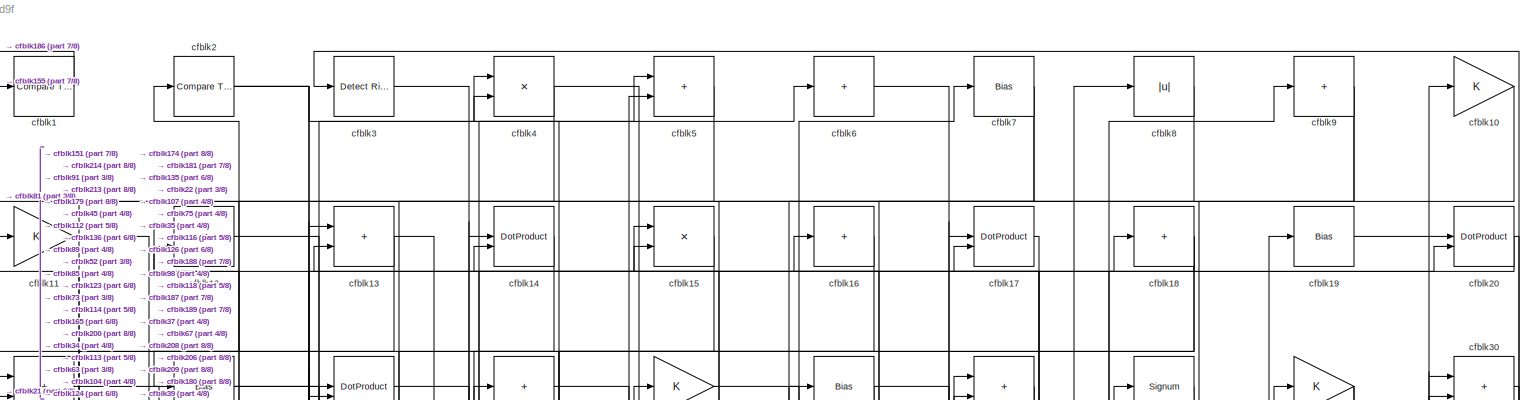
[diagram: root canvas - part 1/8, full width, top band]
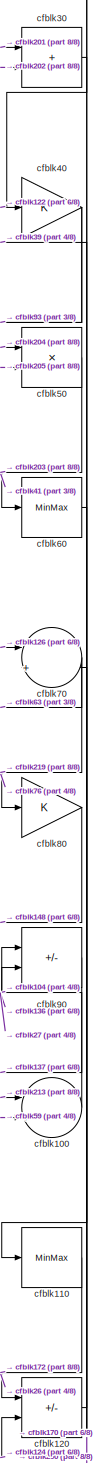
[diagram: root canvas - part 2/8, top right region]
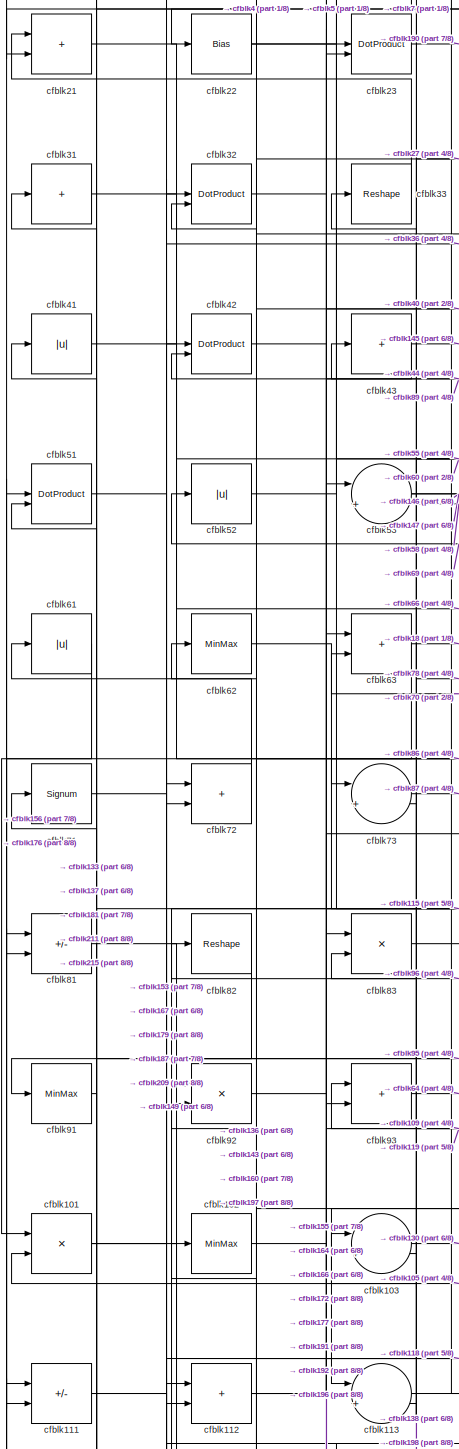
[diagram: root canvas - part 3/8, top left region]
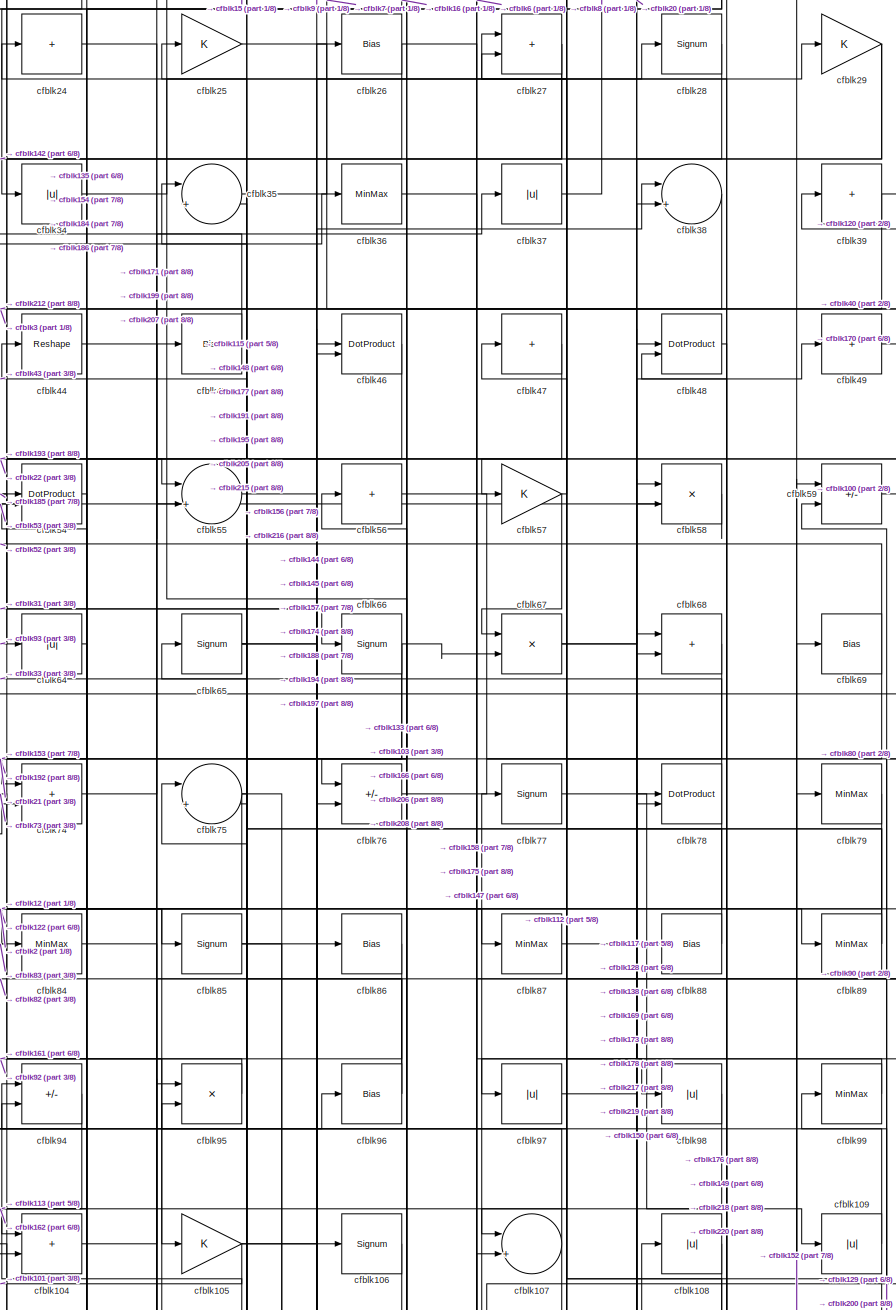
[diagram: root canvas - part 4/8, top center region]
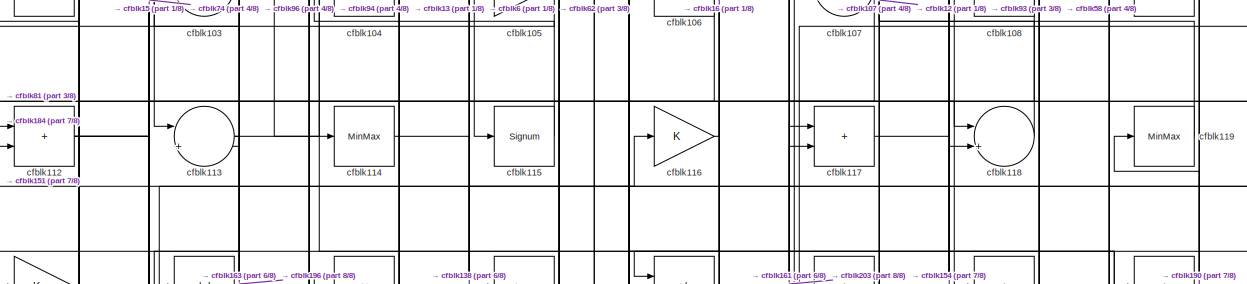
[diagram: root canvas - part 5/8, full width, middle band]
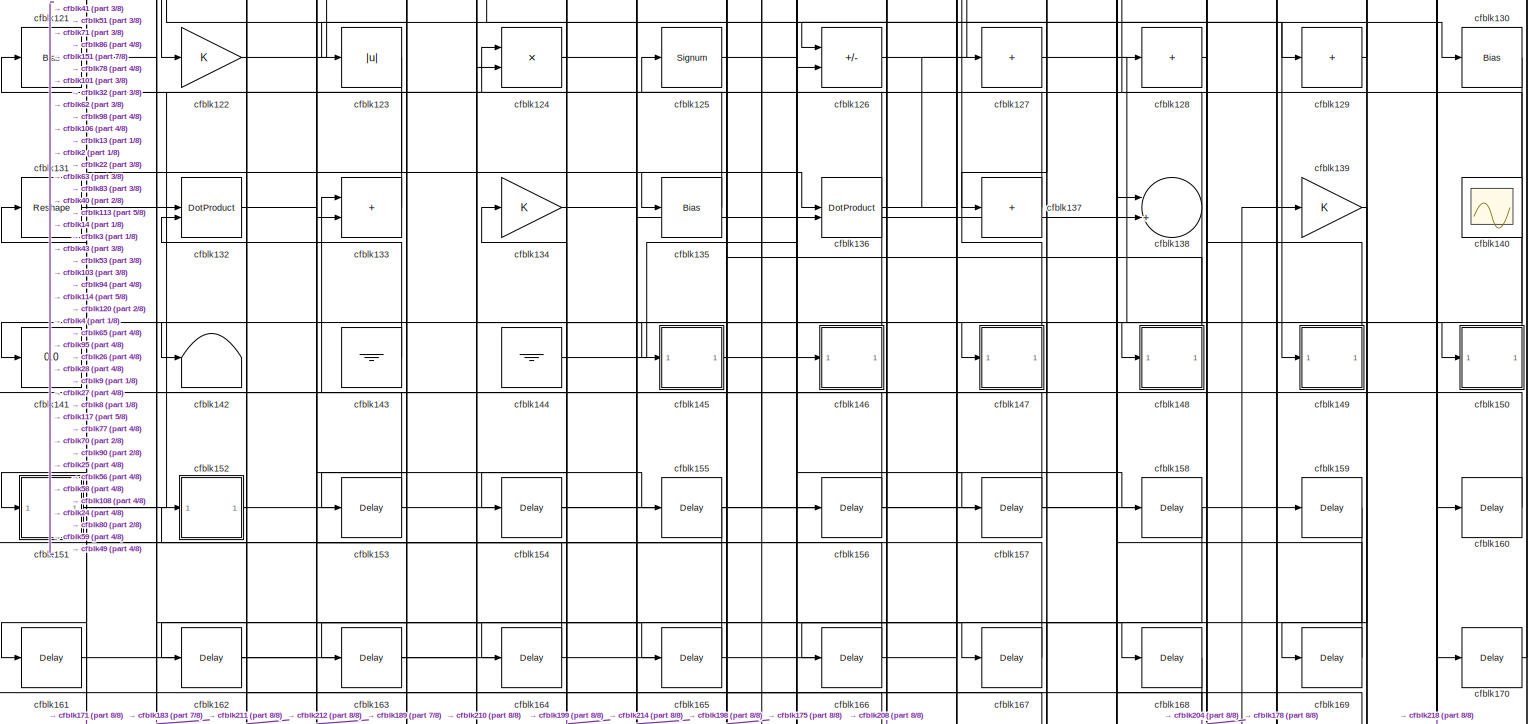
[diagram: root canvas - part 6/8, full width, middle band]
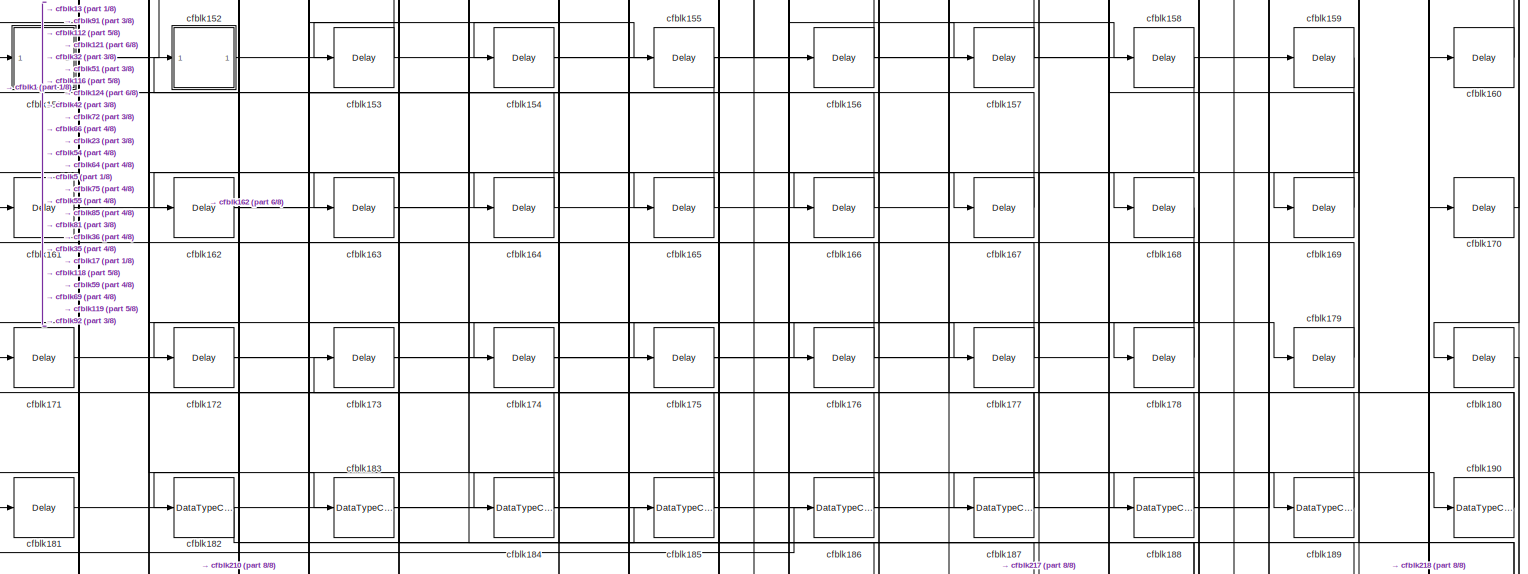
[diagram: root canvas - part 7/8, full width, bottom band]
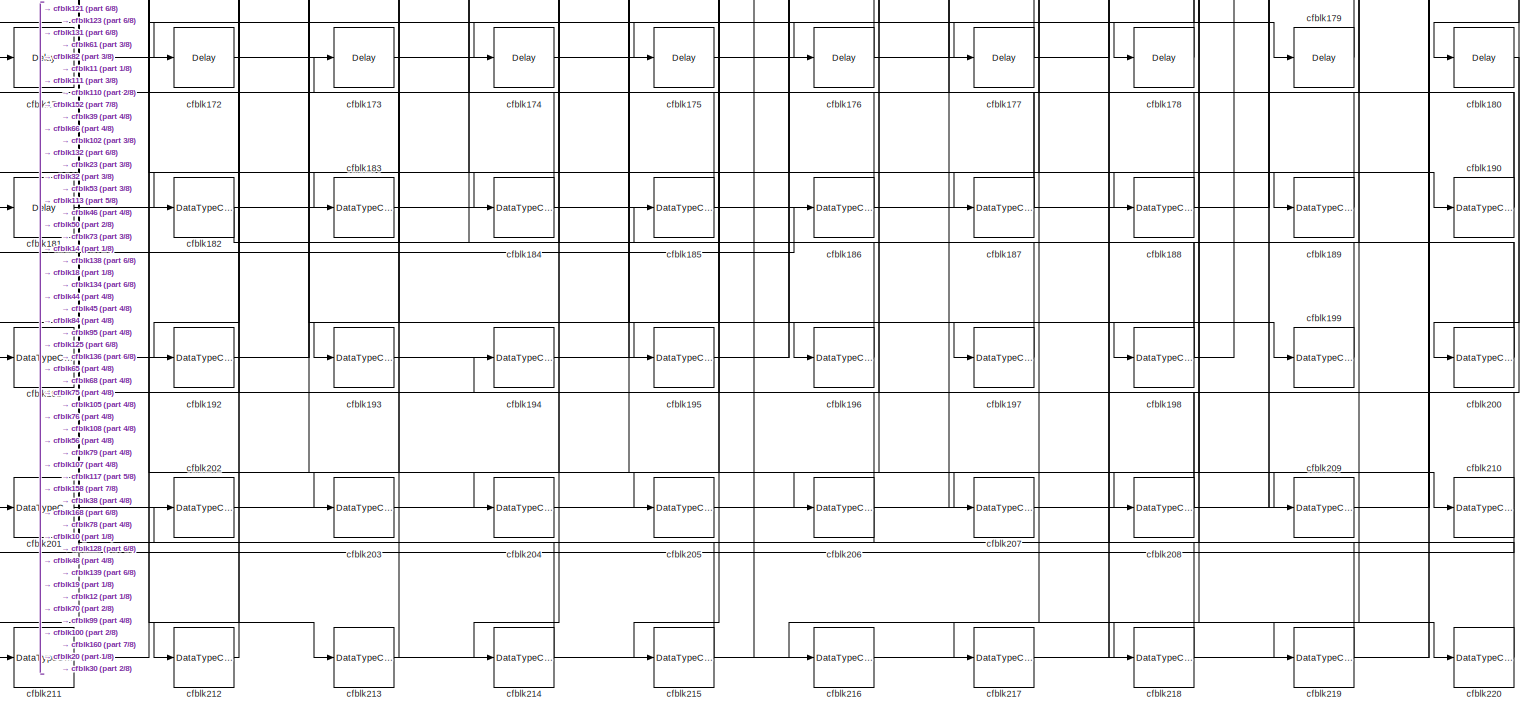
[diagram: root canvas - part 8/8, full width, bottom band]
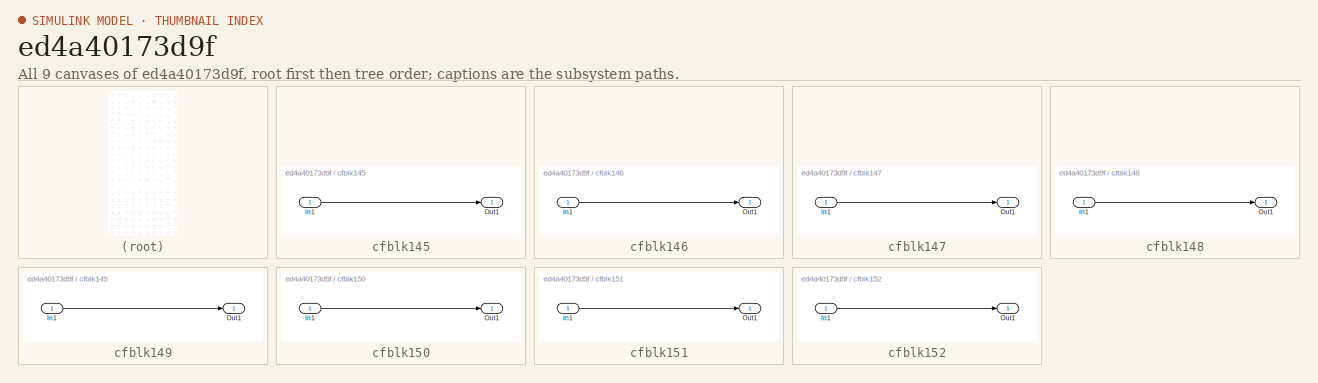
[diagram: thumbnail index - all 9 canvases of the model, root first then tree order]
MODEL slx_ed4a40173d9f
KIND model
CONFIG AbsTol = auto
CONFIG EnableMultiTasking = off
CONFIG FixedStep = auto
CONFIG MaxStep = auto
CONFIG MinStep = auto
CONFIG RelTol = 1e-3
CONFIG SampleTimeConstraint = Unconstrained
CONFIG SolverName = VariableStepAuto
CONFIG StartTime = 0.0
CONFIG StopTime = 10.0
BLOCK [Reference] cfblk1  REF=hdlsllib/Logic and Bit
Operations/Compare
To Zero
  SourceBlock = hdlsllib/Logic and Bit\nOperations/Compare\nTo Zero
  SourceType = Compare To Zero
BLOCK [Gain] cfblk10
BLOCK [Sum] cfblk100
  Inputs = |++
BLOCK [Product] cfblk101
  Inputs = */
  RndMeth = Zero
  SaturateOnIntegerOverflow = on
BLOCK [MinMax] cfblk102
BLOCK [Sum] cfblk103
  Inputs = |++
BLOCK [Sum] cfblk104
  IconShape = rectangular
BLOCK [Gain] cfblk105
BLOCK [Signum] cfblk106
BLOCK [Sum] cfblk107
  Inputs = |++
BLOCK [Abs] cfblk108
  SaturateOnIntegerOverflow = off
BLOCK [Abs] cfblk109
  SaturateOnIntegerOverflow = off
BLOCK [Gain] cfblk11
BLOCK [MinMax] cfblk110
BLOCK [Sum] cfblk111
  IconShape = rectangular
  Inputs = +-
BLOCK [Sum] cfblk112
  IconShape = rectangular
BLOCK [Sum] cfblk113
  Inputs = |++
BLOCK [MinMax] cfblk114
BLOCK [Signum] cfblk115
BLOCK [Gain] cfblk116
BLOCK [Sum] cfblk117
  IconShape = rectangular
BLOCK [Sum] cfblk118
  Inputs = |++
BLOCK [MinMax] cfblk119
BLOCK [Product] cfblk12
  Inputs = */
  RndMeth = Zero
  SaturateOnIntegerOverflow = on
BLOCK [Sum] cfblk120
  IconShape = rectangular
  Inputs = +-
BLOCK [Bias] cfblk121
  Bias = 0.0
  SaturateOnIntegerOverflow = off
BLOCK [Gain] cfblk122
BLOCK [Abs] cfblk123
  SaturateOnIntegerOverflow = off
BLOCK [Product] cfblk124
  Inputs = */
  RndMeth = Zero
  SaturateOnIntegerOverflow = on
BLOCK [Signum] cfblk125
BLOCK [Sum] cfblk126
  IconShape = rectangular
  Inputs = +-
BLOCK [Sum] cfblk127
  IconShape = rectangular
  Inputs = +
BLOCK [Sum] cfblk128
  IconShape = rectangular
  Inputs = +
BLOCK [Sum] cfblk129
  IconShape = rectangular
  Inputs = +
BLOCK [Sum] cfblk13
  IconShape = rectangular
BLOCK [Bias] cfblk130
  Bias = 0.0
  SaturateOnIntegerOverflow = off
BLOCK [Reshape] cfblk131
BLOCK [DotProduct] cfblk132
  OutDataTypeStr = Inherit: Inherit via internal rule
BLOCK [Sum] cfblk133
  IconShape = rectangular
BLOCK [Gain] cfblk134
BLOCK [Bias] cfblk135
  Bias = 0.0
  SaturateOnIntegerOverflow = off
BLOCK [DotProduct] cfblk136
  OutDataTypeStr = Inherit: Inherit via internal rule
BLOCK [Sum] cfblk137
  IconShape = rectangular
  Inputs = +
BLOCK [Sum] cfblk138
  Inputs = |++
BLOCK [Gain] cfblk139
BLOCK [DotProduct] cfblk14
  OutDataTypeStr = Inherit: Inherit via internal rule
BLOCK [Scope] cfblk140
  Floating = on
  NumInputPorts = 1
  ScopeSpecificationString = Simulink.scopes.TimeScopeBlockCfg('CurrentConfiguration', extmgr.ConfigurationSet(extmgr.Configuration('Core','General UI',true,'FigureColor',[0.156862745098039 0.156862745098039 0.156862745098039]),extmgr.Configuration('Core','Source UI',true),extmgr.Configuration('Sources','WiredSimulink',true,'DataLoggingVariableName','ScopeData1','DataLoggingSaveFormat','StructureWithTime','DataLoggingLimitDat...<+2713ch>
BLOCK [Display] cfblk141
  Decimation = 1
BLOCK [Terminator] cfblk142
BLOCK [Ground] cfblk143
BLOCK [Ground] cfblk144
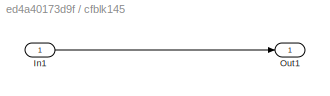
BLOCK [SubSystem] cfblk145
  LibrarySourceBlock = hdlsllib/Ports &\nSubsystems/Subsystem
BLOCK [Inport] cfblk145/In1
BLOCK [Outport] cfblk145/Out1
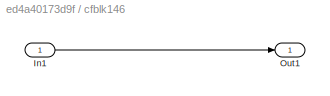
BLOCK [SubSystem] cfblk146
  LibrarySourceBlock = hdlsllib/Ports &\nSubsystems/Subsystem
BLOCK [Inport] cfblk146/In1
BLOCK [Outport] cfblk146/Out1
BLOCK [SubSystem] cfblk147
  LibrarySourceBlock = hdlsllib/Ports &\nSubsystems/Subsystem
BLOCK [Inport] cfblk147/In1
BLOCK [Outport] cfblk147/Out1
BLOCK [SubSystem] cfblk148
  LibrarySourceBlock = hdlsllib/Ports &\nSubsystems/Subsystem
BLOCK [Inport] cfblk148/In1
BLOCK [Outport] cfblk148/Out1
BLOCK [SubSystem] cfblk149
  LibrarySourceBlock = hdlsllib/Ports &\nSubsystems/Subsystem
BLOCK [Inport] cfblk149/In1
BLOCK [Outport] cfblk149/Out1
BLOCK [Product] cfblk15
  Inputs = */
  RndMeth = Zero
  SaturateOnIntegerOverflow = on
BLOCK [SubSystem] cfblk150
  LibrarySourceBlock = hdlsllib/Ports &\nSubsystems/Subsystem
BLOCK [Inport] cfblk150/In1
BLOCK [Outport] cfblk150/Out1
BLOCK [SubSystem] cfblk151
  LibrarySourceBlock = hdlsllib/Ports &\nSubsystems/Subsystem
BLOCK [Inport] cfblk151/In1
BLOCK [Outport] cfblk151/Out1
BLOCK [SubSystem] cfblk152
  LibrarySourceBlock = hdlsllib/Ports &\nSubsystems/Subsystem
BLOCK [Inport] cfblk152/In1
BLOCK [Outport] cfblk152/Out1
BLOCK [Delay] cfblk153
  InputPortMap = u0
  SampleTime = 1
BLOCK [Delay] cfblk154
  InputPortMap = u0
  SampleTime = 1
BLOCK [Delay] cfblk155
  InputPortMap = u0
  SampleTime = 1
BLOCK [Delay] cfblk156
  InputPortMap = u0
  SampleTime = 1
BLOCK [Delay] cfblk157
  InputPortMap = u0
  SampleTime = 1
BLOCK [Delay] cfblk158
  InputPortMap = u0
  SampleTime = 1
BLOCK [Delay] cfblk159
  InputPortMap = u0
  SampleTime = 1
BLOCK [Sum] cfblk16
  IconShape = rectangular
  Inputs = +
BLOCK [Delay] cfblk160
  InputPortMap = u0
  SampleTime = 1
BLOCK [Delay] cfblk161
  InputPortMap = u0
  SampleTime = 1
BLOCK [Delay] cfblk162
  InputPortMap = u0
  SampleTime = 1
BLOCK [Delay] cfblk163
  InputPortMap = u0
  SampleTime = 1
BLOCK [Delay] cfblk164
  InputPortMap = u0
  SampleTime = 1
BLOCK [Delay] cfblk165
  InputPortMap = u0
  SampleTime = 1
BLOCK [Delay] cfblk166
  InputPortMap = u0
  SampleTime = 1
BLOCK [Delay] cfblk167
  InputPortMap = u0
  SampleTime = 1
BLOCK [Delay] cfblk168
  InputPortMap = u0
  SampleTime = 1
BLOCK [Delay] cfblk169
  InputPortMap = u0
  SampleTime = 1
BLOCK [DotProduct] cfblk17
  OutDataTypeStr = Inherit: Inherit via internal rule
BLOCK [Delay] cfblk170
  InputPortMap = u0
  SampleTime = 1
BLOCK [Delay] cfblk171
  InputPortMap = u0
  SampleTime = 1
BLOCK [Delay] cfblk172
  InputPortMap = u0
  SampleTime = 1
BLOCK [Delay] cfblk173
  InputPortMap = u0
  SampleTime = 1
BLOCK [Delay] cfblk174
  InputPortMap = u0
  SampleTime = 1
BLOCK [Delay] cfblk175
  InputPortMap = u0
  SampleTime = 1
BLOCK [Delay] cfblk176
  InputPortMap = u0
  SampleTime = 1
BLOCK [Delay] cfblk177
  InputPortMap = u0
  SampleTime = 1
BLOCK [Delay] cfblk178
  InputPortMap = u0
  SampleTime = 1
BLOCK [Delay] cfblk179
  InputPortMap = u0
  SampleTime = 1
BLOCK [Sum] cfblk18
  IconShape = rectangular
  Inputs = +
BLOCK [Delay] cfblk180
  InputPortMap = u0
  SampleTime = 1
BLOCK [Delay] cfblk181
  InputPortMap = u0
  SampleTime = 1
BLOCK [DataTypeConversion] cfblk182
  OutDataTypeStr = uint8
  RndMeth = Floor
  SaturateOnIntegerOverflow = off
BLOCK [DataTypeConversion] cfblk183
  OutDataTypeStr = uint8
  RndMeth = Floor
  SaturateOnIntegerOverflow = off
BLOCK [DataTypeConversion] cfblk184
  RndMeth = Floor
  SaturateOnIntegerOverflow = off
BLOCK [DataTypeConversion] cfblk185
  OutDataTypeStr = uint8
  RndMeth = Floor
  SaturateOnIntegerOverflow = off
BLOCK [DataTypeConversion] cfblk186
  OutDataTypeStr = uint8
  RndMeth = Floor
  SaturateOnIntegerOverflow = off
BLOCK [DataTypeConversion] cfblk187
  RndMeth = Floor
  SaturateOnIntegerOverflow = off
BLOCK [DataTypeConversion] cfblk188
  OutDataTypeStr = uint8
  RndMeth = Floor
  SaturateOnIntegerOverflow = off
BLOCK [DataTypeConversion] cfblk189
  OutDataTypeStr = uint8
  RndMeth = Floor
  SaturateOnIntegerOverflow = off
BLOCK [Bias] cfblk19
  Bias = 0.0
  SaturateOnIntegerOverflow = off
BLOCK [DataTypeConversion] cfblk190
  RndMeth = Floor
  SaturateOnIntegerOverflow = off
BLOCK [DataTypeConversion] cfblk191
  OutDataTypeStr = uint8
  RndMeth = Floor
  SaturateOnIntegerOverflow = off
BLOCK [DataTypeConversion] cfblk192
  OutDataTypeStr = uint8
  RndMeth = Floor
  SaturateOnIntegerOverflow = off
BLOCK [DataTypeConversion] cfblk193
  OutDataTypeStr = uint8
  RndMeth = Floor
  SaturateOnIntegerOverflow = off
BLOCK [DataTypeConversion] cfblk194
  OutDataTypeStr = uint8
  RndMeth = Floor
  SaturateOnIntegerOverflow = off
BLOCK [DataTypeConversion] cfblk195
  OutDataTypeStr = uint8
  RndMeth = Floor
  SaturateOnIntegerOverflow = off
BLOCK [DataTypeConversion] cfblk196
  OutDataTypeStr = uint8
  RndMeth = Floor
  SaturateOnIntegerOverflow = off
BLOCK [DataTypeConversion] cfblk197
  OutDataTypeStr = uint8
  RndMeth = Floor
  SaturateOnIntegerOverflow = off
BLOCK [DataTypeConversion] cfblk198
  RndMeth = Floor
  SaturateOnIntegerOverflow = off
BLOCK [DataTypeConversion] cfblk199
  OutDataTypeStr = uint8
  RndMeth = Floor
  SaturateOnIntegerOverflow = off
BLOCK [Reference] cfblk2  REF=hdlsllib/Logic and Bit
Operations/Compare
To Constant
  SourceBlock = hdlsllib/Logic and Bit\nOperations/Compare\nTo Constant
  SourceType = Compare To Constant
BLOCK [DotProduct] cfblk20
  OutDataTypeStr = Inherit: Inherit via internal rule
BLOCK [DataTypeConversion] cfblk200
  RndMeth = Floor
  SaturateOnIntegerOverflow = off
BLOCK [DataTypeConversion] cfblk201
  OutDataTypeStr = uint8
  RndMeth = Floor
  SaturateOnIntegerOverflow = off
BLOCK [DataTypeConversion] cfblk202
  OutDataTypeStr = uint8
  RndMeth = Floor
  SaturateOnIntegerOverflow = off
BLOCK [DataTypeConversion] cfblk203
  OutDataTypeStr = uint8
  RndMeth = Floor
  SaturateOnIntegerOverflow = off
BLOCK [DataTypeConversion] cfblk204
  OutDataTypeStr = uint8
  RndMeth = Floor
  SaturateOnIntegerOverflow = off
BLOCK [DataTypeConversion] cfblk205
  OutDataTypeStr = uint8
  RndMeth = Floor
  SaturateOnIntegerOverflow = off
BLOCK [DataTypeConversion] cfblk206
  RndMeth = Floor
  SaturateOnIntegerOverflow = off
BLOCK [DataTypeConversion] cfblk207
  OutDataTypeStr = uint8
  RndMeth = Floor
  SaturateOnIntegerOverflow = off
BLOCK [DataTypeConversion] cfblk208
  RndMeth = Floor
  SaturateOnIntegerOverflow = off
BLOCK [DataTypeConversion] cfblk209
  OutDataTypeStr = uint8
  RndMeth = Floor
  SaturateOnIntegerOverflow = off
BLOCK [Sum] cfblk21
  IconShape = rectangular
BLOCK [DataTypeConversion] cfblk210
  RndMeth = Floor
  SaturateOnIntegerOverflow = off
BLOCK [DataTypeConversion] cfblk211
  OutDataTypeStr = uint8
  RndMeth = Floor
  SaturateOnIntegerOverflow = off
BLOCK [DataTypeConversion] cfblk212
  OutDataTypeStr = uint8
  RndMeth = Floor
  SaturateOnIntegerOverflow = off
BLOCK [DataTypeConversion] cfblk213
  RndMeth = Floor
  SaturateOnIntegerOverflow = off
BLOCK [DataTypeConversion] cfblk214
  OutDataTypeStr = uint8
  RndMeth = Floor
  SaturateOnIntegerOverflow = off
BLOCK [DataTypeConversion] cfblk215
  RndMeth = Floor
  SaturateOnIntegerOverflow = off
BLOCK [DataTypeConversion] cfblk216
  OutDataTypeStr = uint8
  RndMeth = Floor
  SaturateOnIntegerOverflow = off
BLOCK [DataTypeConversion] cfblk217
  OutDataTypeStr = uint8
  RndMeth = Floor
  SaturateOnIntegerOverflow = off
BLOCK [DataTypeConversion] cfblk218
  RndMeth = Floor
  SaturateOnIntegerOverflow = off
BLOCK [DataTypeConversion] cfblk219
  OutDataTypeStr = uint8
  RndMeth = Floor
  SaturateOnIntegerOverflow = off
BLOCK [Bias] cfblk22
  Bias = 0.0
  SaturateOnIntegerOverflow = off
BLOCK [DataTypeConversion] cfblk220
  OutDataTypeStr = uint8
  RndMeth = Floor
  SaturateOnIntegerOverflow = off
BLOCK [DotProduct] cfblk23
  OutDataTypeStr = Inherit: Inherit via internal rule
BLOCK [Sum] cfblk24
  IconShape = rectangular
  Inputs = +
BLOCK [Gain] cfblk25
BLOCK [Bias] cfblk26
  Bias = 0.0
  SaturateOnIntegerOverflow = off
BLOCK [Sum] cfblk27
  IconShape = rectangular
BLOCK [Signum] cfblk28
BLOCK [Gain] cfblk29
BLOCK [Reference] cfblk3  REF=hdlsllib/Logic and Bit
Operations/Detect Rise
Positive
  SourceBlock = hdlsllib/Logic and Bit\nOperations/Detect Rise\nPositive
  SourceType = Detect Rise Positive
BLOCK [Sum] cfblk30
  IconShape = rectangular
BLOCK [Sum] cfblk31
  IconShape = rectangular
  Inputs = +
BLOCK [DotProduct] cfblk32
  OutDataTypeStr = Inherit: Inherit via internal rule
BLOCK [Reshape] cfblk33
BLOCK [Abs] cfblk34
  SaturateOnIntegerOverflow = off
BLOCK [Sum] cfblk35
  Inputs = |++
BLOCK [MinMax] cfblk36
BLOCK [Abs] cfblk37
  SaturateOnIntegerOverflow = off
BLOCK [Sum] cfblk38
  Inputs = |++
BLOCK [Sum] cfblk39
  IconShape = rectangular
  Inputs = +
BLOCK [Product] cfblk4
  Inputs = */
  RndMeth = Zero
  SaturateOnIntegerOverflow = on
BLOCK [Gain] cfblk40
BLOCK [Abs] cfblk41
  SaturateOnIntegerOverflow = off
BLOCK [DotProduct] cfblk42
  OutDataTypeStr = Inherit: Inherit via internal rule
BLOCK [Sum] cfblk43
  IconShape = rectangular
  Inputs = +
BLOCK [Reshape] cfblk44
BLOCK [Bias] cfblk45
  Bias = 0.0
  SaturateOnIntegerOverflow = off
BLOCK [DotProduct] cfblk46
  OutDataTypeStr = Inherit: Inherit via internal rule
BLOCK [Sum] cfblk47
  IconShape = rectangular
  Inputs = +
BLOCK [DotProduct] cfblk48
  OutDataTypeStr = Inherit: Inherit via internal rule
BLOCK [Sum] cfblk49
  IconShape = rectangular
  Inputs = +
BLOCK [Sum] cfblk5
  IconShape = rectangular
BLOCK [Product] cfblk50
  Inputs = */
  RndMeth = Zero
  SaturateOnIntegerOverflow = on
BLOCK [DotProduct] cfblk51
  OutDataTypeStr = Inherit: Inherit via internal rule
BLOCK [Abs] cfblk52
  SaturateOnIntegerOverflow = off
BLOCK [Sum] cfblk53
  Inputs = |++
BLOCK [DotProduct] cfblk54
  OutDataTypeStr = Inherit: Inherit via internal rule
BLOCK [Sum] cfblk55
  Inputs = |++
BLOCK [Sum] cfblk56
  IconShape = rectangular
  Inputs = +
BLOCK [Gain] cfblk57
BLOCK [Product] cfblk58
  Inputs = */
  RndMeth = Zero
  SaturateOnIntegerOverflow = on
BLOCK [Sum] cfblk59
  IconShape = rectangular
  Inputs = +-
BLOCK [Sum] cfblk6
  IconShape = rectangular
  Inputs = +
BLOCK [MinMax] cfblk60
BLOCK [Abs] cfblk61
  SaturateOnIntegerOverflow = off
BLOCK [MinMax] cfblk62
BLOCK [Sum] cfblk63
  IconShape = rectangular
BLOCK [Abs] cfblk64
  SaturateOnIntegerOverflow = off
BLOCK [Signum] cfblk65
BLOCK [Signum] cfblk66
BLOCK [Product] cfblk67
  Inputs = */
  RndMeth = Zero
  SaturateOnIntegerOverflow = on
BLOCK [Sum] cfblk68
  IconShape = rectangular
BLOCK [Bias] cfblk69
  Bias = 0.0
  SaturateOnIntegerOverflow = off
BLOCK [Bias] cfblk7
  Bias = 0.0
  SaturateOnIntegerOverflow = off
BLOCK [Sum] cfblk70
  Inputs = |++
BLOCK [Signum] cfblk71
BLOCK [Sum] cfblk72
  IconShape = rectangular
BLOCK [Sum] cfblk73
  Inputs = |++
BLOCK [Sum] cfblk74
  IconShape = rectangular
BLOCK [Sum] cfblk75
  Inputs = |++
BLOCK [Sum] cfblk76
  IconShape = rectangular
  Inputs = +-
BLOCK [Signum] cfblk77
BLOCK [DotProduct] cfblk78
  OutDataTypeStr = Inherit: Inherit via internal rule
BLOCK [MinMax] cfblk79
BLOCK [Abs] cfblk8
  SaturateOnIntegerOverflow = off
BLOCK [Gain] cfblk80
BLOCK [Sum] cfblk81
  IconShape = rectangular
  Inputs = +-
BLOCK [Reshape] cfblk82
BLOCK [Product] cfblk83
  Inputs = */
  RndMeth = Zero
  SaturateOnIntegerOverflow = on
BLOCK [MinMax] cfblk84
BLOCK [Signum] cfblk85
BLOCK [Bias] cfblk86
  Bias = 0.0
  SaturateOnIntegerOverflow = off
BLOCK [MinMax] cfblk87
BLOCK [Bias] cfblk88
  Bias = 0.0
  SaturateOnIntegerOverflow = off
BLOCK [MinMax] cfblk89
BLOCK [Sum] cfblk9
  IconShape = rectangular
  Inputs = +
BLOCK [Sum] cfblk90
  IconShape = rectangular
  Inputs = +-
BLOCK [MinMax] cfblk91
BLOCK [Product] cfblk92
  Inputs = */
  RndMeth = Zero
  SaturateOnIntegerOverflow = on
BLOCK [Sum] cfblk93
  IconShape = rectangular
BLOCK [Sum] cfblk94
  IconShape = rectangular
  Inputs = +-
BLOCK [Product] cfblk95
  Inputs = */
  RndMeth = Zero
  SaturateOnIntegerOverflow = on
BLOCK [Bias] cfblk96
  Bias = 0.0
  SaturateOnIntegerOverflow = off
BLOCK [Abs] cfblk97
  SaturateOnIntegerOverflow = off
BLOCK [Abs] cfblk98
  SaturateOnIntegerOverflow = off
BLOCK [MinMax] cfblk99
LINE cfblk100:1 -> cfblk27:2
NET cfblk101:1 -> cfblk149:1, cfblk36:1
LINE cfblk102:1 -> cfblk196:1
LINE cfblk103:1 -> cfblk130:1
LINE cfblk104:1 -> cfblk90:1
NET cfblk105:1 -> cfblk101:2, cfblk216:1, cfblk38:1
LINE cfblk106:1 -> cfblk133:2
NET cfblk107:1 -> cfblk112:2, cfblk15:1
LINE cfblk108:1 -> cfblk176:1
LINE cfblk109:1 -> cfblk83:2
LINE cfblk10:1 -> cfblk208:1
LINE cfblk110:1 -> cfblk172:1
NET cfblk111:1 -> cfblk179:1, cfblk209:1
NET cfblk112:1 -> cfblk15:2, cfblk74:2, cfblk96:1
NET cfblk113:1 -> cfblk163:1, cfblk6:1
LINE cfblk114:1 -> cfblk138:2
LINE cfblk115:1 -> cfblk94:1
LINE cfblk116:1 -> cfblk16:1
LINE cfblk117:1 -> cfblk58:2
LINE cfblk118:1 -> cfblk12:1
LINE cfblk119:1 -> cfblk93:1
LINE cfblk11:1 -> cfblk213:1
LINE cfblk120:1 -> cfblk39:1
LINE cfblk121:1 -> cfblk183:1
LINE cfblk122:1 -> cfblk40:1
LINE cfblk123:1 -> cfblk171:1
NET cfblk124:1 -> cfblk120:2, cfblk4:1
LINE cfblk125:1 -> cfblk168:1
LINE cfblk126:1 -> cfblk70:1
LINE cfblk127:1 -> cfblk150:1
LINE cfblk128:1 -> cfblk178:1
LINE cfblk129:1 -> cfblk59:2
LINE cfblk12:1 -> cfblk85:1
LINE cfblk130:1 -> cfblk133:1
LINE cfblk131:1 -> cfblk136:1
LINE cfblk132:1 -> cfblk210:1
LINE cfblk133:1 -> cfblk71:1
LINE cfblk134:1 -> cfblk198:1
LINE cfblk135:1 -> cfblk94:2
NET cfblk136:1 -> cfblk127:1, cfblk175:1, cfblk32:2, cfblk90:2
LINE cfblk137:1 -> cfblk41:1
NET cfblk138:1 -> cfblk103:1, cfblk214:1
LINE cfblk139:1 -> cfblk169:1
NET cfblk13:1 -> cfblk114:1, cfblk151:1
LINE cfblk143:1 -> cfblk62:1
LINE cfblk144:1 -> cfblk26:1
LINE cfblk145/In1:1 -> cfblk145/Out1:1
LINE cfblk145:1 -> cfblk28:1
LINE cfblk146/In1:1 -> cfblk146/Out1:1
LINE cfblk146:1 -> cfblk141:1
LINE cfblk147/In1:1 -> cfblk147/Out1:1
LINE cfblk147:1 -> cfblk77:1
LINE cfblk148/In1:1 -> cfblk148/Out1:1
LINE cfblk148:1 -> cfblk95:2
LINE cfblk149/In1:1 -> cfblk149/Out1:1
LINE cfblk149:1 -> cfblk24:1
LINE cfblk14:1 -> cfblk123:1
LINE cfblk150/In1:1 -> cfblk150/Out1:1
LINE cfblk150:1 -> cfblk108:1
LINE cfblk151/In1:1 -> cfblk151/Out1:1
NET cfblk151:1 -> cfblk116:1, cfblk124:1
LINE cfblk152/In1:1 -> cfblk152/Out1:1
LINE cfblk152:1 -> cfblk59:1
LINE cfblk153:1 -> cfblk72:1
LINE cfblk154:1 -> cfblk118:2
LINE cfblk155:1 -> cfblk1:1
LINE cfblk156:1 -> cfblk81:1
LINE cfblk157:1 -> cfblk35:1
LINE cfblk158:1 -> cfblk217:1
LINE cfblk159:1 -> cfblk182:1
LINE cfblk15:1 -> cfblk34:1
LINE cfblk160:1 -> cfblk92:2
LINE cfblk161:1 -> cfblk117:2
LINE cfblk162:1 -> cfblk189:1
LINE cfblk163:1 -> cfblk124:2
LINE cfblk164:1 -> cfblk51:2
LINE cfblk165:1 -> cfblk13:1
LINE cfblk166:1 -> cfblk63:1
LINE cfblk167:1 -> cfblk83:1
LINE cfblk168:1 -> cfblk204:1
LINE cfblk169:1 -> cfblk58:1
LINE cfblk16:1 -> cfblk104:1
LINE cfblk170:1 -> cfblk70:2
LINE cfblk171:1 -> cfblk95:1
LINE cfblk172:1 -> cfblk53:1
LINE cfblk173:1 -> cfblk38:2
LINE cfblk174:1 -> cfblk76:2
LINE cfblk175:1 -> cfblk107:2
LINE cfblk176:1 -> cfblk111:1
LINE cfblk177:1 -> cfblk75:1
LINE cfblk178:1 -> cfblk78:1
LINE cfblk179:1 -> cfblk12:2
LINE cfblk17:1 -> cfblk187:1
LINE cfblk180:1 -> cfblk194:1
LINE cfblk181:1 -> cfblk5:2
LINE cfblk182:1 -> cfblk185:1
LINE cfblk183:1 -> cfblk159:1
NET cfblk184:1 -> cfblk112:1, cfblk69:1
LINE cfblk185:1 -> cfblk54:1
LINE cfblk186:1 -> cfblk54:2
NET cfblk187:1 -> cfblk32:1, cfblk51:1
LINE cfblk188:1 -> cfblk17:1
LINE cfblk189:1 -> cfblk17:2
NET cfblk18:1 -> cfblk13:2, cfblk174:1, cfblk21:2
NET cfblk190:1 -> cfblk119:1, cfblk42:1
LINE cfblk191:1 -> cfblk23:1
LINE cfblk192:1 -> cfblk23:2
LINE cfblk193:1 -> cfblk45:1
LINE cfblk194:1 -> cfblk46:1
LINE cfblk195:1 -> cfblk46:2
LINE cfblk196:1 -> cfblk113:2
LINE cfblk197:1 -> cfblk102:1
NET cfblk198:1 -> cfblk125:1, cfblk139:1, cfblk73:2
LINE cfblk199:1 -> cfblk134:1
LINE cfblk19:1 -> cfblk20:1
LINE cfblk1:1 -> cfblk186:1
NET cfblk200:1 -> cfblk14:1, cfblk99:1
LINE cfblk201:1 -> cfblk30:1
LINE cfblk202:1 -> cfblk30:2
LINE cfblk203:1 -> cfblk117:1
LINE cfblk204:1 -> cfblk50:1
LINE cfblk205:1 -> cfblk50:2
NET cfblk206:1 -> cfblk19:1, cfblk202:1, cfblk65:1
LINE cfblk207:1 -> cfblk79:1
NET cfblk208:1 -> cfblk131:1, cfblk56:1
LINE cfblk209:1 -> cfblk10:1
NET cfblk20:1 -> cfblk14:2, cfblk180:1
NET cfblk210:1 -> cfblk152:1, cfblk201:1
LINE cfblk211:1 -> cfblk132:1
LINE cfblk212:1 -> cfblk132:2
NET cfblk213:1 -> cfblk100:1, cfblk173:1
LINE cfblk214:1 -> cfblk11:1
NET cfblk215:1 -> cfblk220:1, cfblk61:1
LINE cfblk216:1 -> cfblk68:1
LINE cfblk217:1 -> cfblk68:2
NET cfblk218:1 -> cfblk121:1, cfblk160:1
LINE cfblk219:1 -> cfblk48:1
LINE cfblk21:1 -> cfblk86:1
LINE cfblk220:1 -> cfblk48:2
NET cfblk22:1 -> cfblk164:1, cfblk55:1
LINE cfblk23:1 -> cfblk190:1
LINE cfblk24:1 -> cfblk55:2
LINE cfblk25:1 -> cfblk138:1
NET cfblk26:1 -> cfblk104:2, cfblk120:1
NET cfblk27:1 -> cfblk103:2, cfblk166:1
LINE cfblk28:1 -> cfblk142:1
NET cfblk29:1 -> cfblk57:1, cfblk78:2
NET cfblk2:1 -> cfblk136:2, cfblk4:2, cfblk89:1
LINE cfblk30:1 -> cfblk200:1
LINE cfblk31:1 -> cfblk66:1
LINE cfblk32:1 -> cfblk177:1
LINE cfblk33:1 -> cfblk21:1
LINE cfblk34:1 -> cfblk29:1
LINE cfblk35:1 -> cfblk7:1
LINE cfblk36:1 -> cfblk158:1
LINE cfblk37:1 -> cfblk8:1
LINE cfblk38:1 -> cfblk74:1
NET cfblk39:1 -> cfblk212:1, cfblk3:1
LINE cfblk3:1 -> cfblk165:1
NET cfblk40:1 -> cfblk76:1, cfblk93:2
LINE cfblk41:1 -> cfblk60:1
LINE cfblk42:1 -> cfblk155:1
NET cfblk43:1 -> cfblk145:1, cfblk42:2
LINE cfblk44:1 -> cfblk207:1
LINE cfblk45:1 -> cfblk2:1
LINE cfblk46:1 -> cfblk193:1
LINE cfblk47:1 -> cfblk84:1
LINE cfblk48:1 -> cfblk218:1
LINE cfblk49:1 -> cfblk170:1
NET cfblk4:1 -> cfblk135:1, cfblk22:1
LINE cfblk50:1 -> cfblk203:1
LINE cfblk51:1 -> cfblk72:2
LINE cfblk52:1 -> cfblk5:1
NET cfblk53:1 -> cfblk146:1, cfblk147:1
LINE cfblk54:1 -> cfblk184:1
LINE cfblk55:1 -> cfblk157:1
LINE cfblk56:1 -> cfblk128:1
NET cfblk57:1 -> cfblk27:1, cfblk67:1
LINE cfblk58:1 -> cfblk53:2
LINE cfblk59:1 -> cfblk100:2
LINE cfblk5:1 -> cfblk91:1
LINE cfblk60:1 -> cfblk110:1
LINE cfblk61:1 -> cfblk101:1
LINE cfblk62:1 -> cfblk115:1
NET cfblk63:1 -> cfblk111:2, cfblk18:1
LINE cfblk64:1 -> cfblk154:1
NET cfblk65:1 -> cfblk129:1, cfblk195:1, cfblk197:1
NET cfblk66:1 -> cfblk153:1, cfblk192:1, cfblk67:2
NET cfblk67:1 -> cfblk20:2, cfblk9:1
LINE cfblk68:1 -> cfblk215:1
NET cfblk69:1 -> cfblk107:1, cfblk52:1
LINE cfblk6:1 -> cfblk98:1
NET cfblk70:1 -> cfblk219:1, cfblk63:2
LINE cfblk71:1 -> cfblk167:1
LINE cfblk72:1 -> cfblk31:1
LINE cfblk73:1 -> cfblk87:1
LINE cfblk74:1 -> cfblk37:1
NET cfblk75:1 -> cfblk156:1, cfblk191:1, cfblk205:1
LINE cfblk76:1 -> cfblk80:1
LINE cfblk77:1 -> cfblk109:1
NET cfblk78:1 -> cfblk122:1, cfblk33:1
LINE cfblk79:1 -> cfblk206:1
NET cfblk7:1 -> cfblk73:1, cfblk81:2
LINE cfblk80:1 -> cfblk148:1
LINE cfblk81:1 -> cfblk118:1
LINE cfblk82:1 -> cfblk211:1
LINE cfblk83:1 -> cfblk105:1
LINE cfblk84:1 -> cfblk199:1
NET cfblk85:1 -> cfblk106:1, cfblk188:1
LINE cfblk86:1 -> cfblk161:1
LINE cfblk87:1 -> cfblk49:1
LINE cfblk88:1 -> cfblk47:1
NET cfblk89:1 -> cfblk35:2, cfblk43:1
LINE cfblk8:1 -> cfblk126:1
LINE cfblk90:1 -> cfblk137:1
LINE cfblk91:1 -> cfblk181:1
LINE cfblk92:1 -> cfblk44:1
LINE cfblk93:1 -> cfblk64:1
LINE cfblk94:1 -> cfblk113:1
LINE cfblk95:1 -> cfblk92:1
NET cfblk96:1 -> cfblk25:1, cfblk82:1
LINE cfblk97:1 -> cfblk88:1
LINE cfblk98:1 -> cfblk162:1
LINE cfblk99:1 -> cfblk97:1
NET cfblk9:1 -> cfblk126:2, cfblk75:2
note: NET lines group one-source signal fan-out (src -> all destinations, sorted); 1:1 wires keep LINE
